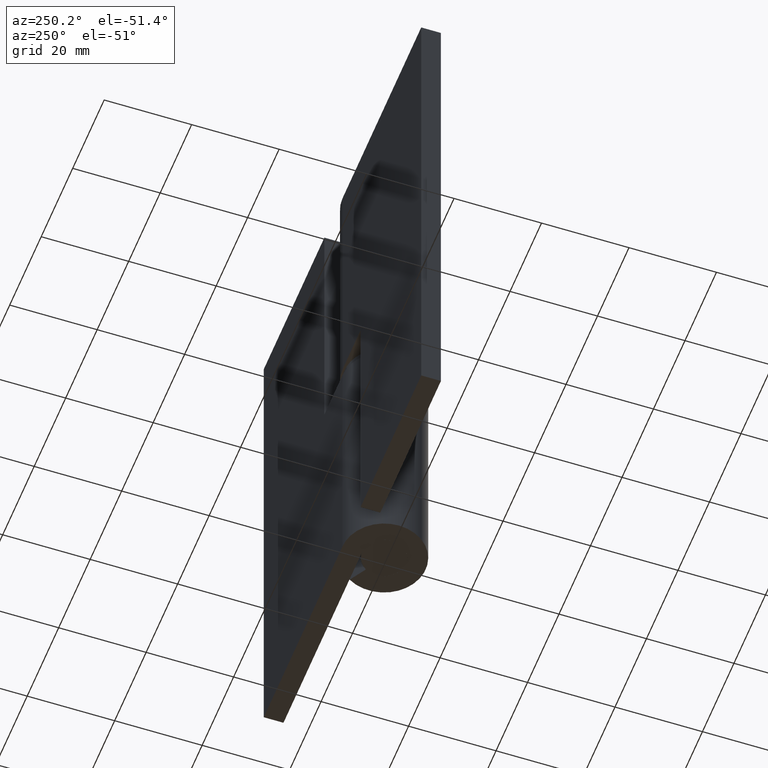
[diagram: clean part render]
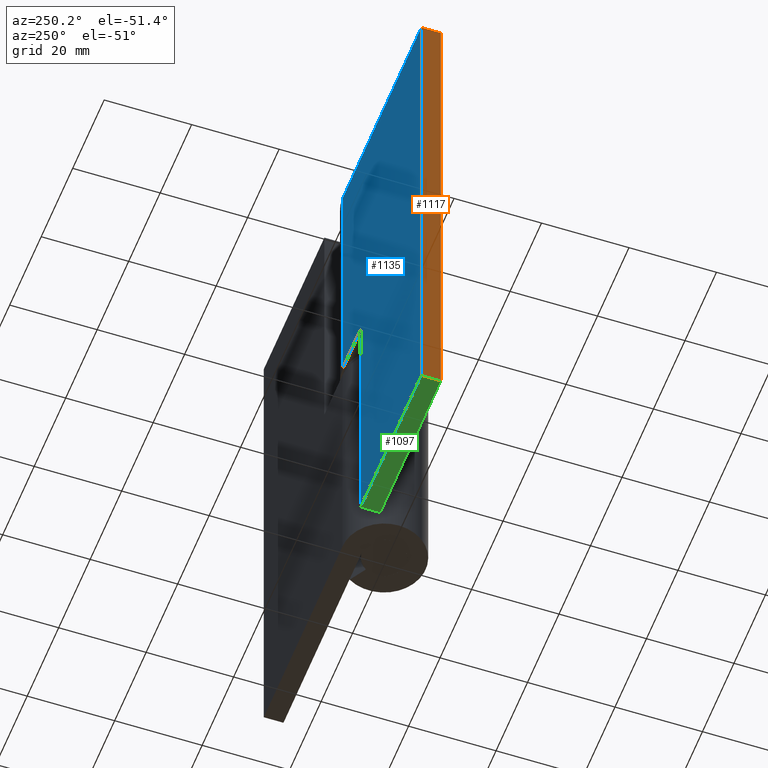
[diagram: same view with three faces highlighted in distinct colors, each labeled with its STEP entity id]
A machine part, auxiliary view with three faces highlighted in distinct colors.
Their STEP definitions:

[orange] entity #1117 — the highlighted face is a freeform B-spline surface patch.
#997=CARTESIAN_POINT('',(-49.999991999999899,5.0,120.000015000000000));
#998=VERTEX_POINT('',#997);
#1055=CARTESIAN_POINT('',(-49.999991999999899,9.500000000000000,120.000015000000000));
#1056=VERTEX_POINT('',#1055);
#1062=CARTESIAN_POINT('',(-49.999991999999899,9.500000000000000,120.000015000000000));
#1063=CARTESIAN_POINT('',(-49.999991999999899,5.0,120.000015000000000));
#1064=QUASI_UNIFORM_CURVE('',1,(#1062,#1063),.UNSPECIFIED.,.F.,.U.);
#1065=EDGE_CURVE('',#1056,#998,#1064,.T.);
#1076=CARTESIAN_POINT('',(-49.999991999999899,5.0,0.0));
#1077=VERTEX_POINT('',#1076);
#1083=CARTESIAN_POINT('',(-49.999991999999899,9.500000000000000,0.0));
#1084=VERTEX_POINT('',#1083);
#1085=CARTESIAN_POINT('',(-49.999991999999899,9.500000000000000,0.0));
#1086=CARTESIAN_POINT('',(-49.999991999999899,5.0,0.0));
#1087=QUASI_UNIFORM_CURVE('',1,(#1085,#1086),.UNSPECIFIED.,.F.,.U.);
#1088=EDGE_CURVE('',#1084,#1077,#1087,.T.);
#1098=CARTESIAN_POINT('',(-49.999991999999899,4.775225008721874,-5.994000516666691));
#1099=CARTESIAN_POINT('',(-49.999991999999899,4.775225008721874,125.994018735317890));
#1100=CARTESIAN_POINT('',(-49.999991999999899,9.724775111977532,-5.994000516666691));
#1101=CARTESIAN_POINT('',(-49.999991999999899,9.724775111977532,125.994018735317890));
#1102=B_SPLINE_SURFACE_WITH_KNOTS('',1,1,((#1098,#1100),(#1099,#1101)),.UNSPECIFIED.,.F.,.F.,.U.,(2,2),(2,2),(0.0,131.988019251984610),(0.0,4.949550103255659),.UNSPECIFIED.);
#1103=ORIENTED_EDGE('',*,*,#1065,.F.);
#1104=CARTESIAN_POINT('',(-49.999991999999899,9.500000000000000,0.0));
#1105=CARTESIAN_POINT('',(-49.999991999999899,9.500000000000000,120.000015000000000));
#1106=QUASI_UNIFORM_CURVE('',1,(#1104,#1105),.UNSPECIFIED.,.F.,.U.);
#1107=EDGE_CURVE('',#1084,#1056,#1106,.T.);
#1108=ORIENTED_EDGE('',*,*,#1107,.F.);
#1109=ORIENTED_EDGE('',*,*,#1088,.T.);
#1110=CARTESIAN_POINT('',(-49.999991999999899,5.0,0.0));
#1111=CARTESIAN_POINT('',(-49.999991999999899,5.0,120.000015000000000));
#1112=QUASI_UNIFORM_CURVE('',1,(#1110,#1111),.UNSPECIFIED.,.F.,.U.);
#1113=EDGE_CURVE('',#1077,#998,#1112,.T.);
#1114=ORIENTED_EDGE('',*,*,#1113,.T.);
#1115=EDGE_LOOP('',(#1103,#1108,#1109,#1114));
#1116=FACE_OUTER_BOUND('',#1115,.T.);
#1117=ADVANCED_FACE('',(#1116),#1102,.T.);

[blue] entity #1135 — the highlighted face is a freeform B-spline surface patch.
#900=CARTESIAN_POINT('',(-11.500000000000000,9.500000000000000,0.0));
#901=VERTEX_POINT('',#900);
#907=CARTESIAN_POINT('',(-11.500000000000000,9.500000000000000,61.0));
#908=VERTEX_POINT('',#907);
#909=CARTESIAN_POINT('',(-11.500000000000000,9.500000000000000,61.0));
#910=CARTESIAN_POINT('',(-11.500000000000000,9.500000000000000,0.0));
#911=QUASI_UNIFORM_CURVE('',1,(#909,#910),.UNSPECIFIED.,.F.,.U.);
#912=EDGE_CURVE('',#908,#901,#911,.T.);
#935=CARTESIAN_POINT('',(5.816866E-016,9.500000000000000,61.0));
#936=VERTEX_POINT('',#935);
#937=CARTESIAN_POINT('',(5.816866E-016,9.500000000000000,61.0));
#938=CARTESIAN_POINT('',(-11.500000000000000,9.500000000000000,61.0));
#939=QUASI_UNIFORM_CURVE('',1,(#937,#938),.UNSPECIFIED.,.F.,.U.);
#940=EDGE_CURVE('',#936,#908,#939,.T.);
#1034=CARTESIAN_POINT('',(5.816880E-016,9.500000000000000,120.000015000000000));
#1035=VERTEX_POINT('',#1034);
#1055=CARTESIAN_POINT('',(-49.999991999999899,9.500000000000000,120.000015000000000));
#1056=VERTEX_POINT('',#1055);
#1057=CARTESIAN_POINT('',(5.816880E-016,9.500000000000000,120.000015000000000));
#1058=CARTESIAN_POINT('',(-49.999991999999899,9.500000000000000,120.000015000000000));
#1059=QUASI_UNIFORM_CURVE('',1,(#1057,#1058),.UNSPECIFIED.,.F.,.U.);
#1060=EDGE_CURVE('',#1035,#1056,#1059,.T.);
#1083=CARTESIAN_POINT('',(-49.999991999999899,9.500000000000000,0.0));
#1084=VERTEX_POINT('',#1083);
#1090=CARTESIAN_POINT('',(-11.500000000000000,9.500000000000000,0.0));
#1091=CARTESIAN_POINT('',(-49.999991999999899,9.500000000000000,0.0));
#1092=QUASI_UNIFORM_CURVE('',1,(#1090,#1091),.UNSPECIFIED.,.F.,.U.);
#1093=EDGE_CURVE('',#901,#1084,#1092,.T.);
#1104=CARTESIAN_POINT('',(-49.999991999999899,9.500000000000000,0.0));
#1105=CARTESIAN_POINT('',(-49.999991999999899,9.500000000000000,120.000015000000000));
#1106=QUASI_UNIFORM_CURVE('',1,(#1104,#1105),.UNSPECIFIED.,.F.,.U.);
#1107=EDGE_CURVE('',#1084,#1056,#1106,.T.);
#1118=CARTESIAN_POINT('',(-52.497491972854363,9.500000000000000,-5.994000516666691));
#1119=CARTESIAN_POINT('',(-52.497491972854370,9.500000000000000,125.994018735317890));
#1120=CARTESIAN_POINT('',(2.497500866923997,9.500000000000000,-5.994000516666691));
#1121=CARTESIAN_POINT('',(2.497500866923996,9.500000000000000,125.994018735317890));
#1122=B_SPLINE_SURFACE_WITH_KNOTS('',1,1,((#1118,#1120),(#1119,#1121)),.UNSPECIFIED.,.F.,.F.,.U.,(2,2),(2,2),(0.0,131.988019251984610),(0.0,54.994992839778362),.UNSPECIFIED.);
#1123=ORIENTED_EDGE('',*,*,#940,.T.);
#1124=ORIENTED_EDGE('',*,*,#912,.T.);
#1125=ORIENTED_EDGE('',*,*,#1093,.T.);
#1126=ORIENTED_EDGE('',*,*,#1107,.T.);
#1127=ORIENTED_EDGE('',*,*,#1060,.F.);
#1128=CARTESIAN_POINT('',(5.816866E-016,9.500000000000000,61.0));
#1129=CARTESIAN_POINT('',(5.816880E-016,9.500000000000000,120.000015000000000));
#1130=QUASI_UNIFORM_CURVE('',1,(#1128,#1129),.UNSPECIFIED.,.F.,.U.);
#1131=EDGE_CURVE('',#936,#1035,#1130,.T.);
#1132=ORIENTED_EDGE('',*,*,#1131,.F.);
#1133=EDGE_LOOP('',(#1123,#1124,#1125,#1126,#1127,#1132));
#1134=FACE_OUTER_BOUND('',#1133,.T.);
#1135=ADVANCED_FACE('',(#1134),#1122,.T.);

[green] entity #1097 — the highlighted face is a freeform B-spline surface patch.
#893=CARTESIAN_POINT('',(-11.500000000000000,5.0,0.0));
#894=VERTEX_POINT('',#893);
#900=CARTESIAN_POINT('',(-11.500000000000000,9.500000000000000,0.0));
#901=VERTEX_POINT('',#900);
#902=CARTESIAN_POINT('',(-11.500000000000000,9.500000000000000,0.0));
#903=CARTESIAN_POINT('',(-11.500000000000000,5.0,0.0));
#904=QUASI_UNIFORM_CURVE('',1,(#902,#903),.UNSPECIFIED.,.F.,.U.);
#905=EDGE_CURVE('',#901,#894,#904,.T.);
#1070=CARTESIAN_POINT('',(-51.923066887189819,4.775225008721873,0.0));
#1071=CARTESIAN_POINT('',(-9.576924424376578,4.775225008721873,0.0));
#1072=CARTESIAN_POINT('',(-51.923066887189819,9.724775111977532,0.0));
#1073=CARTESIAN_POINT('',(-9.576924424376578,9.724775111977532,0.0));
#1074=B_SPLINE_SURFACE_WITH_KNOTS('',1,1,((#1070,#1072),(#1071,#1073)),.UNSPECIFIED.,.F.,.F.,.U.,(2,2),(2,2),(0.0,42.346142462813241),(0.0,4.949550103255660),.UNSPECIFIED.);
#1075=ORIENTED_EDGE('',*,*,#905,.T.);
#1076=CARTESIAN_POINT('',(-49.999991999999899,5.0,0.0));
#1077=VERTEX_POINT('',#1076);
#1078=CARTESIAN_POINT('',(-49.999991999999899,5.0,0.0));
#1079=CARTESIAN_POINT('',(-11.500000000000000,5.0,0.0));
#1080=QUASI_UNIFORM_CURVE('',1,(#1078,#1079),.UNSPECIFIED.,.F.,.U.);
#1081=EDGE_CURVE('',#1077,#894,#1080,.T.);
#1082=ORIENTED_EDGE('',*,*,#1081,.F.);
#1083=CARTESIAN_POINT('',(-49.999991999999899,9.500000000000000,0.0));
#1084=VERTEX_POINT('',#1083);
#1085=CARTESIAN_POINT('',(-49.999991999999899,9.500000000000000,0.0));
#1086=CARTESIAN_POINT('',(-49.999991999999899,5.0,0.0));
#1087=QUASI_UNIFORM_CURVE('',1,(#1085,#1086),.UNSPECIFIED.,.F.,.U.);
#1088=EDGE_CURVE('',#1084,#1077,#1087,.T.);
#1089=ORIENTED_EDGE('',*,*,#1088,.F.);
#1090=CARTESIAN_POINT('',(-11.500000000000000,9.500000000000000,0.0));
#1091=CARTESIAN_POINT('',(-49.999991999999899,9.500000000000000,0.0));
#1092=QUASI_UNIFORM_CURVE('',1,(#1090,#1091),.UNSPECIFIED.,.F.,.U.);
#1093=EDGE_CURVE('',#901,#1084,#1092,.T.);
#1094=ORIENTED_EDGE('',*,*,#1093,.F.);
#1095=EDGE_LOOP('',(#1075,#1082,#1089,#1094));
#1096=FACE_OUTER_BOUND('',#1095,.T.);
#1097=ADVANCED_FACE('',(#1096),#1074,.F.);